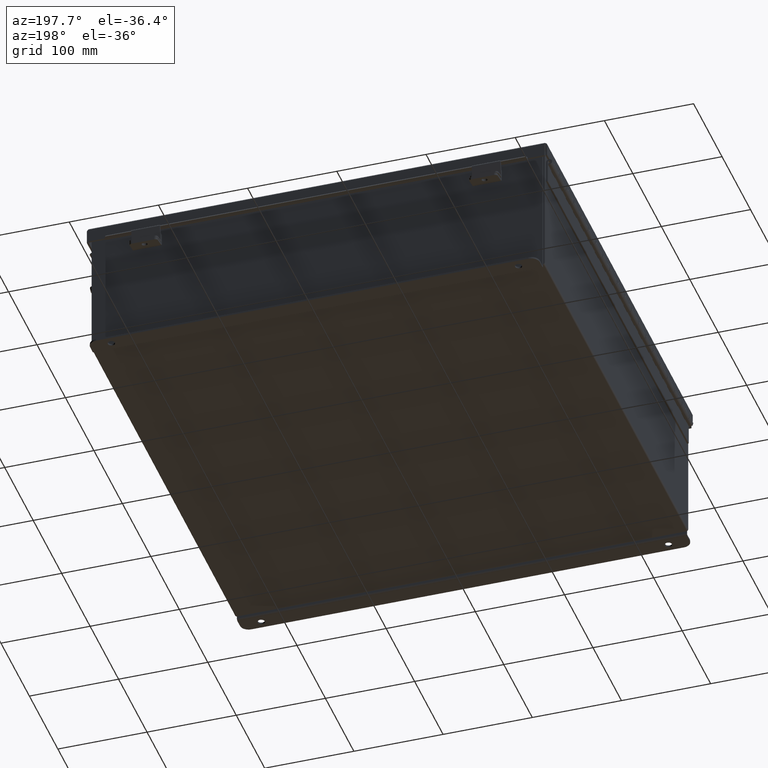
[diagram: clean part render]
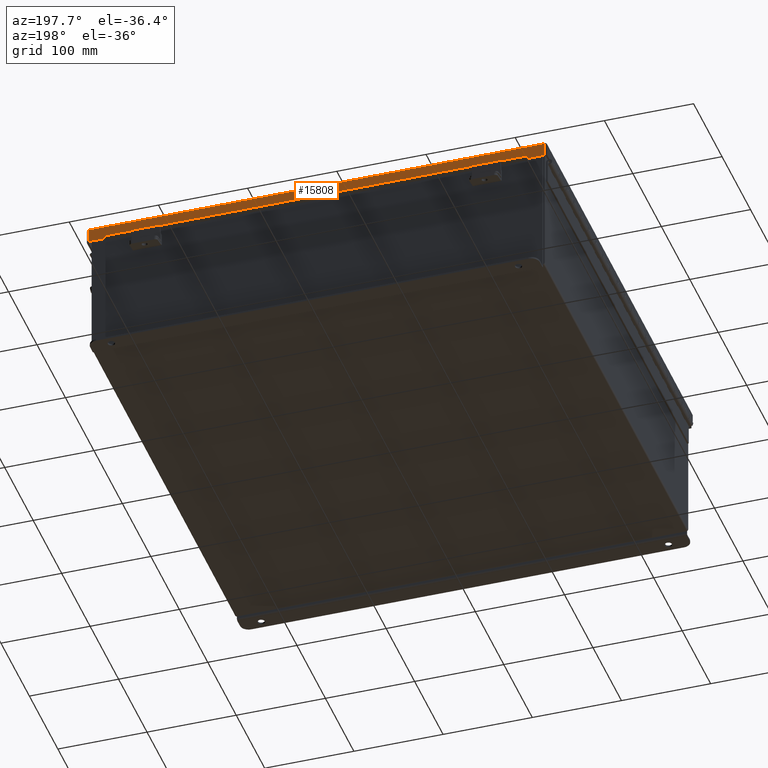
[diagram: same view with one face highlighted and labeled with its STEP entity id]
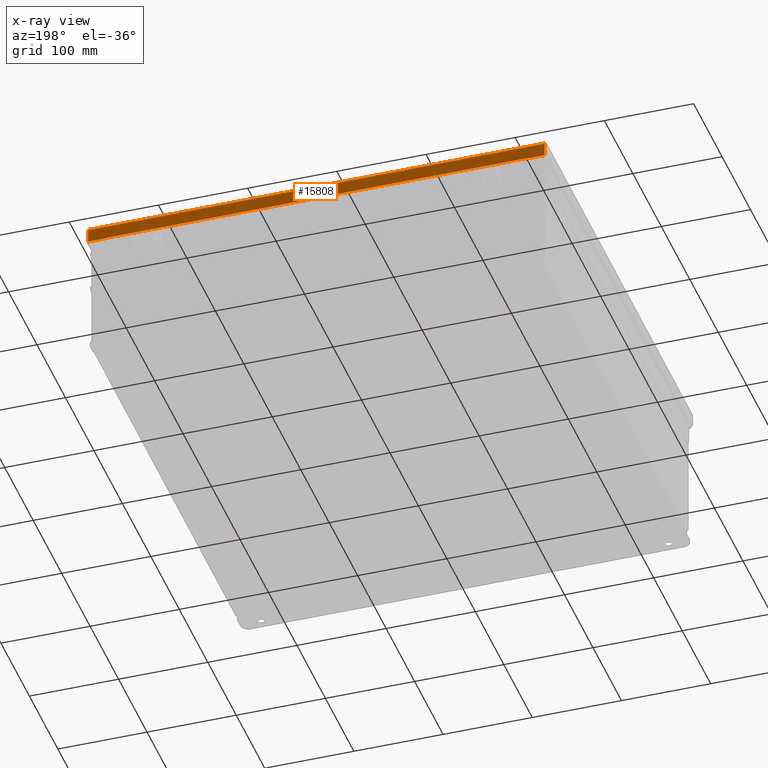
[diagram: x-ray of the same camera — body ghosted, the highlighted face saturated]
A machine part, auxiliary view. The second image highlights one B-rep face of the part: STEP entity #15808.
The next image is the same camera in x-ray: the body ghosted, the highlighted face saturated — about 0% of this face is hidden behind the body in this view.
In plain terms, the highlighted planar face has unit normal (-0, -1, -0).
Its self-contained STEP definition (entity closure, byte-faithful):
#88 = VERTEX_POINT ( 'NONE', #2739 ) ;
#385 = VECTOR ( 'NONE', #7228, 39.37007874015748100 ) ;
#640 = VECTOR ( 'NONE', #19545, 39.37007874015748100 ) ;
#1279 = PLANE ( 'NONE',  #14513 ) ;
#2337 = LINE ( 'NONE', #13495, #20211 ) ;
#2739 = CARTESIAN_POINT ( 'NONE',  ( -10.07447893218813200, 10.15624999999998400, 0.01300000000000010700 ) ) ;
#3578 = VECTOR ( 'NONE', #6586, 39.37007874015748100 ) ;
#4253 = LINE ( 'NONE', #10828, #22155 ) ;
#4264 = CARTESIAN_POINT ( 'NONE',  ( 9.324478932188135600, 10.15624999999998600, 0.5967115427318793200 ) ) ;
#4462 = VERTEX_POINT ( 'NONE', #10914 ) ;
#4705 = ORIENTED_EDGE ( 'NONE', *, *, #18607, .T. ) ;
#4722 = DIRECTION ( 'NONE',  ( 0.0000000000000000000, -3.569293475308526100E-015, -1.000000000000000000 ) ) ;
#4744 = VERTEX_POINT ( 'NONE', #4264 ) ;
#4864 = CARTESIAN_POINT ( 'NONE',  ( -10.07447893218813200, 10.15624999999998600, 0.6122999999999994000 ) ) ;
#5170 = ORIENTED_EDGE ( 'NONE', *, *, #15021, .T. ) ;
#5224 = EDGE_CURVE ( 'NONE', #10458, #18807, #5708, .T. ) ;
#5708 = LINE ( 'NONE', #12025, #18948 ) ;
#6258 = ORIENTED_EDGE ( 'NONE', *, *, #10196, .F. ) ;
#6586 = DIRECTION ( 'NONE',  ( 1.000000000000000000, 2.258600338820354400E-033, -0.0000000000000000000 ) ) ;
#7183 = ORIENTED_EDGE ( 'NONE', *, *, #15902, .F. ) ;
#7228 = DIRECTION ( 'NONE',  ( 7.009925220120717300E-014, -1.401985044024143500E-013, -1.000000000000000000 ) ) ;
#7417 = VERTEX_POINT ( 'NONE', #15277 ) ;
#7560 = DIRECTION ( 'NONE',  ( 1.000000000000000000, 1.821248483703466100E-033, 3.362274453740352500E-018 ) ) ;
#8592 = ORIENTED_EDGE ( 'NONE', *, *, #5224, .F. ) ;
#9010 = VERTEX_POINT ( 'NONE', #21742 ) ;
#9179 = VERTEX_POINT ( 'NONE', #4864 ) ;
#9838 = LINE ( 'NONE', #21303, #640 ) ;
#10196 = EDGE_CURVE ( 'NONE', #9010, #4744, #18788, .T. ) ;
#10458 = VERTEX_POINT ( 'NONE', #15306 ) ;
#10555 = VECTOR ( 'NONE', #16383, 39.37007874015748100 ) ;
#10828 = CARTESIAN_POINT ( 'NONE',  ( -2.134256245050205600E-018, 10.15624999999998600, 0.6122999999999994000 ) ) ;
#10914 = CARTESIAN_POINT ( 'NONE',  ( -9.324478932188130300, 10.15624999999998600, 0.6123000000000005100 ) ) ;
#11105 = LINE ( 'NONE', #21548, #10555 ) ;
#11627 = DIRECTION ( 'NONE',  ( -0.0000000000000000000, 3.569293475308526100E-015, 1.000000000000000000 ) ) ;
#12025 = CARTESIAN_POINT ( 'NONE',  ( 10.07447893218813600, 10.15624999999998400, 7.649174382259936200E-015 ) ) ;
#12139 = ORIENTED_EDGE ( 'NONE', *, *, #15103, .T. ) ;
#12412 = VECTOR ( 'NONE', #7560, 39.37007874015748100 ) ;
#13178 = CARTESIAN_POINT ( 'NONE',  ( 10.07447893218813600, 10.15624999999998600, 0.6123000000000015100 ) ) ;
#13338 = CARTESIAN_POINT ( 'NONE',  ( 0.0000000000000000000, 10.15624999999998400, -3.715313271383398100E-014 ) ) ;
#13435 = CARTESIAN_POINT ( 'NONE',  ( 10.15625000000000200, 10.15624999999998400, 0.01300000000000010700 ) ) ;
#13495 = CARTESIAN_POINT ( 'NONE',  ( -9.324478932188130300, 10.15624999999998400, 0.5967115427318793200 ) ) ;
#13573 = DIRECTION ( 'NONE',  ( -7.009925220120440900E-014, 1.401985044024088200E-013, 1.000000000000000000 ) ) ;
#13828 = EDGE_CURVE ( 'NONE', #4744, #7417, #11105, .T. ) ;
#14513 = AXIS2_PLACEMENT_3D ( 'NONE', #13338, #15117, #4722 ) ;
#15021 = EDGE_CURVE ( 'NONE', #9179, #4462, #4253, .T. ) ;
#15103 = EDGE_CURVE ( 'NONE', #9010, #18807, #21065, .T. ) ;
#15117 = DIRECTION ( 'NONE',  ( -1.185774594731585500E-034, -1.000000000000000000, 3.569293475308526100E-015 ) ) ;
#15277 = CARTESIAN_POINT ( 'NONE',  ( -9.324478932188130300, 10.15624999999998600, 0.5967115427318793200 ) ) ;
#15306 = CARTESIAN_POINT ( 'NONE',  ( 10.07447893218813600, 10.15624999999998400, 0.01300000000000775700 ) ) ;
#15311 = ORIENTED_EDGE ( 'NONE', *, *, #20047, .F. ) ;
#15808 = ADVANCED_FACE ( 'NONE', ( #21849 ), #1279, .F. ) ;
#15902 = EDGE_CURVE ( 'NONE', #7417, #4462, #2337, .T. ) ;
#16383 = DIRECTION ( 'NONE',  ( -1.000000000000000000, -2.258600338820354400E-033, -0.0000000000000000000 ) ) ;
#17389 = LINE ( 'NONE', #13435, #3578 ) ;
#18607 = EDGE_CURVE ( 'NONE', #88, #9179, #9838, .T. ) ;
#18788 = LINE ( 'NONE', #20892, #385 ) ;
#18807 = VERTEX_POINT ( 'NONE', #13178 ) ;
#18948 = VECTOR ( 'NONE', #11627, 39.37007874015748100 ) ;
#19545 = DIRECTION ( 'NONE',  ( 0.0000000000000000000, 3.569293475308526100E-015, 1.000000000000000000 ) ) ;
#19657 = CARTESIAN_POINT ( 'NONE',  ( -2.134256245050205600E-018, 10.15624999999998600, 0.6122999999999994000 ) ) ;
#20047 = EDGE_CURVE ( 'NONE', #88, #10458, #17389, .T. ) ;
#20211 = VECTOR ( 'NONE', #13573, 39.37007874015748100 ) ;
#20621 = EDGE_LOOP ( 'NONE', ( #6258, #12139, #8592, #15311, #4705, #5170, #7183, #21506 ) ) ;
#20892 = CARTESIAN_POINT ( 'NONE',  ( 9.324478932188135600, 10.15624999999998600, 0.6122999999999994000 ) ) ;
#21065 = LINE ( 'NONE', #19657, #12412 ) ;
#21192 = DIRECTION ( 'NONE',  ( 1.000000000000000000, 1.821248483703466100E-033, 3.362274453740352500E-018 ) ) ;
#21303 = CARTESIAN_POINT ( 'NONE',  ( -10.07447893218813200, 10.15624999999998400, -3.606039351636827200E-014 ) ) ;
#21506 = ORIENTED_EDGE ( 'NONE', *, *, #13828, .F. ) ;
#21548 = CARTESIAN_POINT ( 'NONE',  ( 9.324478932188135600, 10.15624999999998400, 0.5967115427318793200 ) ) ;
#21742 = CARTESIAN_POINT ( 'NONE',  ( 9.324478932188135600, 10.15624999999998600, 0.6123000000000005100 ) ) ;
#21849 = FACE_OUTER_BOUND ( 'NONE', #20621, .T. ) ;
#22155 = VECTOR ( 'NONE', #21192, 39.37007874015748100 ) ;